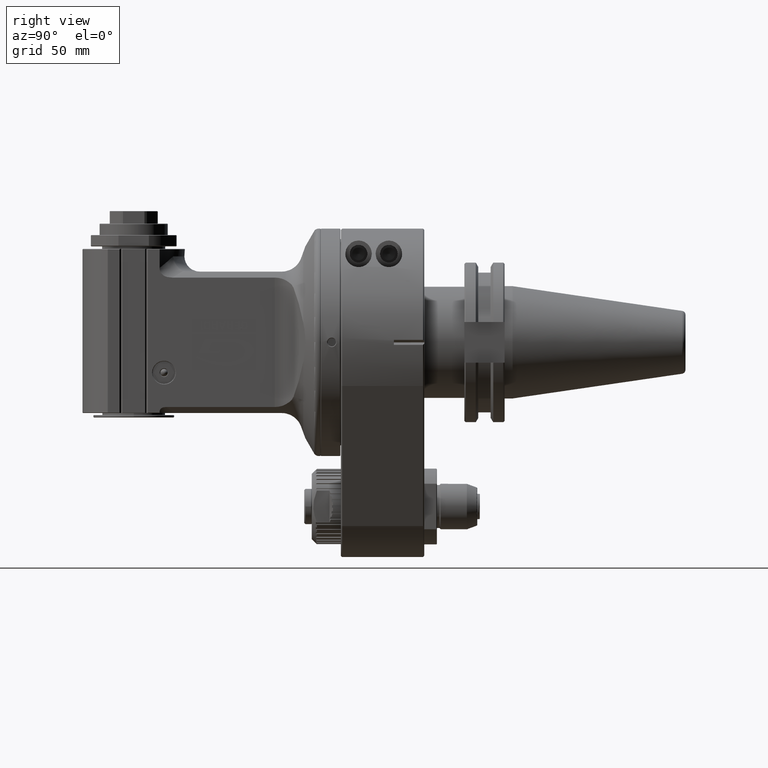
[diagram: clean part render]
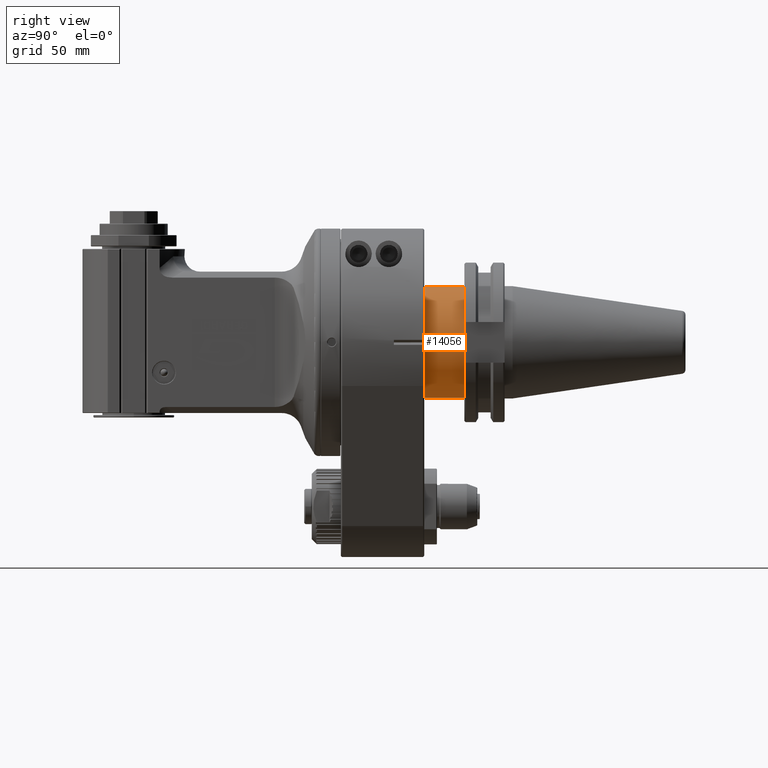
[diagram: same view with one face highlighted and labeled with its STEP entity id]
A machine part, right view. The second image highlights one B-rep face of the part: STEP entity #14056.
In plain terms, the highlighted cylindrical surface (bore or boss wall) has radius 22 mm, axis along (0, -1, 0).
Its self-contained STEP definition (entity closure, byte-faithful):
#970=CIRCLE('',#15231,22.);
#999=CIRCLE('',#15294,22.);
#1334=CYLINDRICAL_SURFACE('',#15293,22.);
#1825=FACE_OUTER_BOUND('',#2666,.T.);
#2666=EDGE_LOOP('',(#11246,#11247,#11248,#11249));
#3764=LINE('',#23217,#4963);
#4963=VECTOR('',#18156,22.);
#6207=VERTEX_POINT('',#23035);
#6248=VERTEX_POINT('',#23215);
#7943=EDGE_CURVE('',#6207,#6207,#970,.T.);
#8016=EDGE_CURVE('',#6248,#6248,#999,.T.);
#8017=EDGE_CURVE('',#6248,#6207,#3764,.T.);
#11246=ORIENTED_EDGE('',*,*,#8016,.T.);
#11247=ORIENTED_EDGE('',*,*,#8017,.T.);
#11248=ORIENTED_EDGE('',*,*,#7943,.T.);
#11249=ORIENTED_EDGE('',*,*,#8017,.F.);
#14056=ADVANCED_FACE('',(#1825),#1334,.T.);
#15231=AXIS2_PLACEMENT_3D('',#23036,#18000,#18001);
#15293=AXIS2_PLACEMENT_3D('',#23214,#18152,#18153);
#15294=AXIS2_PLACEMENT_3D('',#23216,#18154,#18155);
#18000=DIRECTION('center_axis',(0.,-1.,0.));
#18001=DIRECTION('ref_axis',(0.,0.,1.));
#18152=DIRECTION('center_axis',(0.,-1.,0.));
#18153=DIRECTION('ref_axis',(0.,0.,1.));
#18154=DIRECTION('center_axis',(0.,1.,0.));
#18155=DIRECTION('ref_axis',(0.,0.,1.));
#18156=DIRECTION('',(0.,1.,0.));
#23035=CARTESIAN_POINT('',(0.,48.9,-22.));
#23036=CARTESIAN_POINT('Origin',(0.,48.9,-1.266021310354E-14));
#23214=CARTESIAN_POINT('Origin',(0.,141.57,-1.266021310354E-14));
#23215=CARTESIAN_POINT('',(0.,32.9999999999999,-22.));
#23216=CARTESIAN_POINT('Origin',(0.,32.9999999999999,-1.266021310354E-14));
#23217=CARTESIAN_POINT('',(2.69422295812418E-15,141.57,-22.));